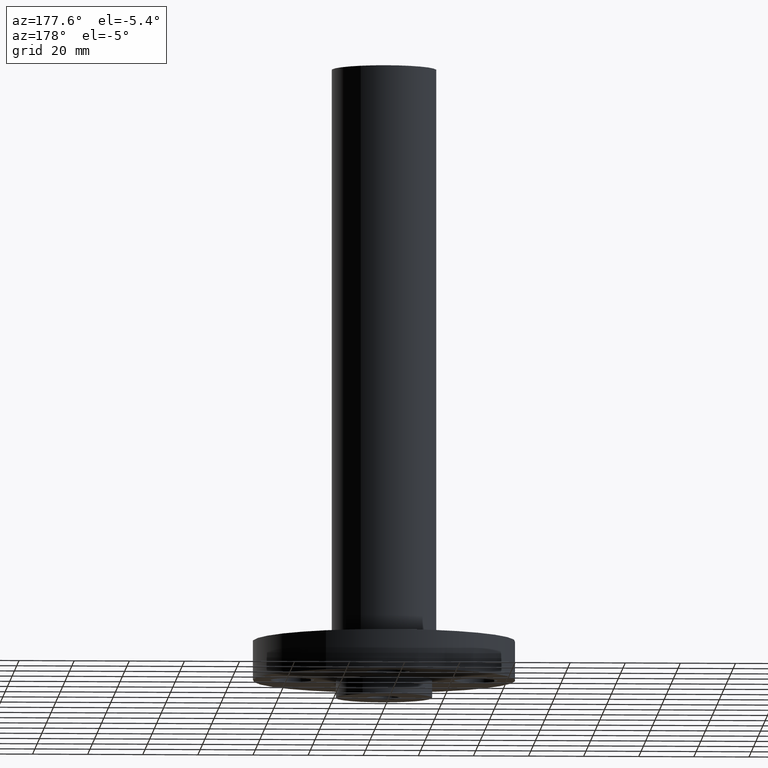
[diagram: clean part render]
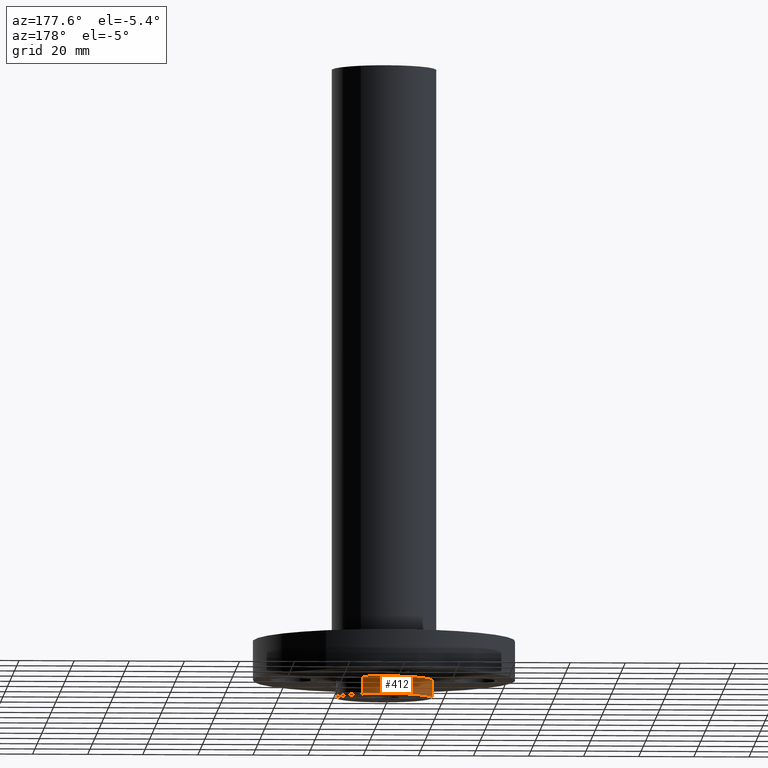
[diagram: same view with one face highlighted and labeled with its STEP entity id]
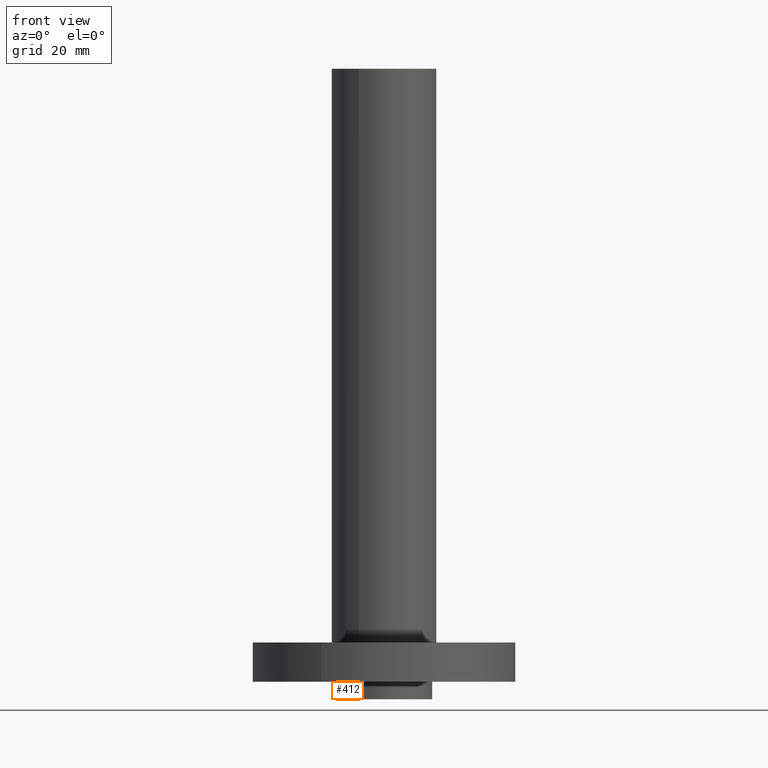
[diagram: same view with one face highlighted and labeled with its STEP entity id]
A machine part, auxiliary view. The second image highlights one B-rep face of the part: STEP entity #412.
A second angle (front view) of the same face is appended — the face is thin or edge-on in the first view.
In plain terms, the highlighted cylindrical surface (partial cylindrical patch) has radius 17.526 mm, axis along (0, 0, -1).
Its self-contained STEP definition (entity closure, byte-faithful):
#118=AXIS2_PLACEMENT_3D('Circle Axis2P3D',#116,#117,$) ;
#370=AXIS2_PLACEMENT_3D('Circle Axis2P3D',#368,#369,$) ;
#394=AXIS2_PLACEMENT_3D('Cylinder Axis2P3D',#391,#392,#393) ;
#111=CARTESIAN_POINT('Vertex',(0.330803621638,0.605531967707,0.)) ;
#113=CARTESIAN_POINT('Vertex',(-0.330803621638,-0.605531967707,0.)) ;
#116=CARTESIAN_POINT('Axis2P3D Location',(0.,0.,0.)) ;
#368=CARTESIAN_POINT('Axis2P3D Location',(0.,0.,-0.250000000001)) ;
#372=CARTESIAN_POINT('Vertex',(-0.330803621638,-0.605531967707,-0.250000000001)) ;
#374=CARTESIAN_POINT('Vertex',(0.330803621638,0.605531967707,-0.250000000001)) ;
#391=CARTESIAN_POINT('Axis2P3D Location',(0.,0.,4.25000000002)) ;
#396=CARTESIAN_POINT('Line Origine',(-0.330803621638,-0.605531967707,-0.125000000001)) ;
#401=CARTESIAN_POINT('Line Origine',(0.330803621638,0.605531967707,-0.125000000001)) ;
#117=DIRECTION('Axis2P3D Direction',(0.,0.,-0.0393700787402)) ;
#369=DIRECTION('Axis2P3D Direction',(0.,0.,-0.0393700787402)) ;
#392=DIRECTION('Axis2P3D Direction',(0.,0.,-0.0393700787402)) ;
#393=DIRECTION('Axis2P3D XDirection',(0.0188750212049,0.0345504945626,0.)) ;
#397=DIRECTION('Vector Direction',(0.,0.,-0.0393700787402)) ;
#402=DIRECTION('Vector Direction',(0.,0.,-0.0393700787402)) ;
#398=VECTOR('Line Direction',#397,0.0393700787402) ;
#403=VECTOR('Line Direction',#402,0.0393700787402) ;
#407=ORIENTED_EDGE('',*,*,#376,.F.) ;
#408=ORIENTED_EDGE('',*,*,#400,.T.) ;
#409=ORIENTED_EDGE('',*,*,#120,.T.) ;
#410=ORIENTED_EDGE('',*,*,#405,.F.) ;
#412=ADVANCED_FACE('PartBody',(#411),#395,.T.) ;
#119=CIRCLE('generated circle',#118,0.690000000003) ;
#371=CIRCLE('generated circle',#370,0.690000000003) ;
#395=CYLINDRICAL_SURFACE('generated cylinder',#394,0.690000000003) ;
#120=EDGE_CURVE('',#114,#112,#119,.T.) ;
#376=EDGE_CURVE('',#373,#375,#371,.T.) ;
#400=EDGE_CURVE('',#373,#114,#399,.F.) ;
#405=EDGE_CURVE('',#375,#112,#404,.F.) ;
#406=EDGE_LOOP('',(#407,#408,#409,#410)) ;
#411=FACE_OUTER_BOUND('',#406,.T.) ;
#399=LINE('Line',#396,#398) ;
#404=LINE('Line',#401,#403) ;
#112=VERTEX_POINT('',#111) ;
#114=VERTEX_POINT('',#113) ;
#373=VERTEX_POINT('',#372) ;
#375=VERTEX_POINT('',#374) ;